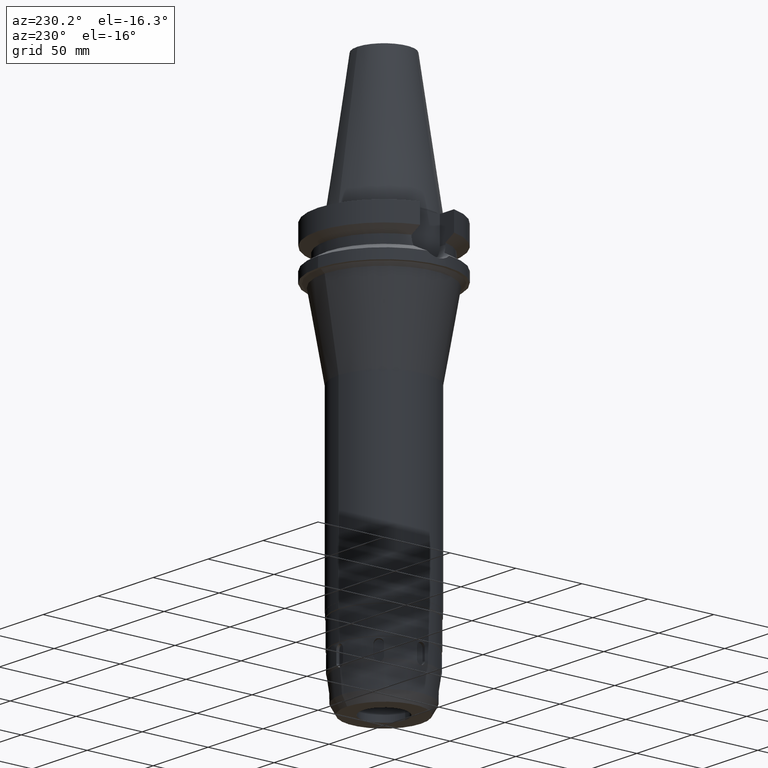
[diagram: clean part render]
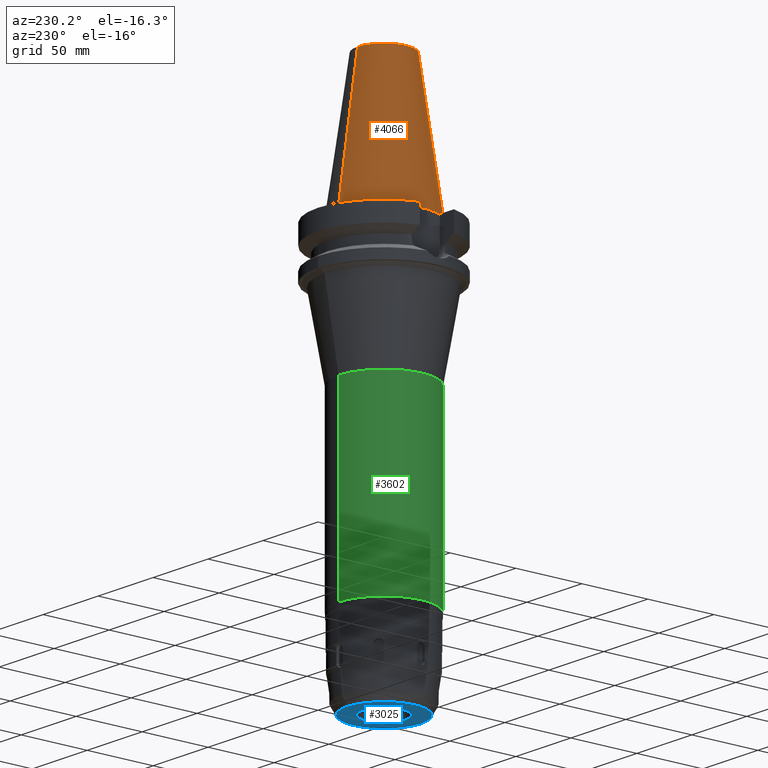
[diagram: same view with three faces highlighted in distinct colors, each labeled with its STEP entity id]
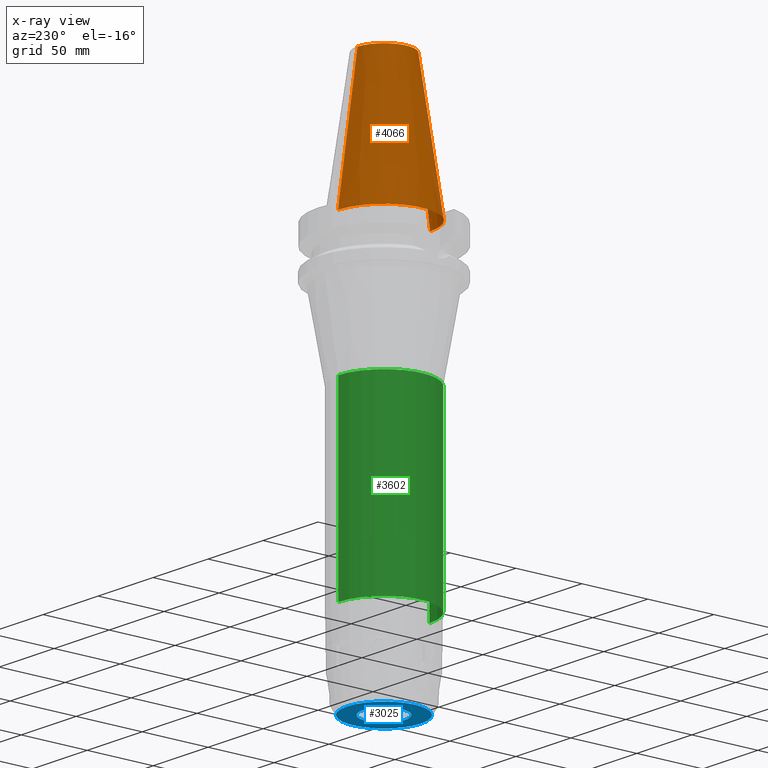
[diagram: x-ray of the same camera — body ghosted, the three highlighted faces saturated]
A machine part, auxiliary view with three faces highlighted in distinct colors.
The next image is the same camera in x-ray (body ghosted, the three faces saturated) — at least one of them is partly hidden behind the body in this view.
Their STEP definitions:

[orange] entity #4066 — the highlighted conical surface has half-angle 8.297 deg.
#1955=DIRECTION('',(0.E0,-1.443043893539E-1,-9.895333461856E-1));
#1956=VECTOR('',#1955,1.028767755957E2);
#1957=CARTESIAN_POINT('',(0.E0,-2.007942971896E1,1.018E2));
#1958=LINE('',#1957,#1956);
#1962=CARTESIAN_POINT('',(0.E0,1.847992019913E-14,8.526512829121E-13));
#1963=DIRECTION('',(0.E0,0.E0,-1.E0));
#1964=DIRECTION('',(0.E0,-1.E0,0.E0));
#1965=AXIS2_PLACEMENT_3D('',#1962,#1963,#1964);
#1970=DIRECTION('',(0.E0,1.443043893539E-1,-9.895333461856E-1));
#1971=VECTOR('',#1970,1.028767755957E2);
#1972=CARTESIAN_POINT('',(0.E0,2.007942971896E1,1.018E2));
#1973=LINE('',#1972,#1971);
#1985=CARTESIAN_POINT('',(0.E0,1.847992019913E-14,1.018E2));
#1986=DIRECTION('',(0.E0,0.E0,-1.E0));
#1987=DIRECTION('',(0.E0,-1.E0,0.E0));
#1988=AXIS2_PLACEMENT_3D('',#1985,#1986,#1987);
#2722=CARTESIAN_POINT('',(0.E0,3.4925E1,7.531752999057E-13));
#2723=VERTEX_POINT('',#2722);
#2724=CARTESIAN_POINT('',(0.E0,-3.4925E1,7.531752999057E-13));
#2725=VERTEX_POINT('',#2724);
#2726=CARTESIAN_POINT('',(0.E0,2.007942971896E1,1.018E2));
#2727=VERTEX_POINT('',#2726);
#2728=CARTESIAN_POINT('',(0.E0,-2.007942971896E1,1.018E2));
#2729=VERTEX_POINT('',#2728);
#4052=CARTESIAN_POINT('',(0.E0,1.847992019913E-14,5.09E1));
#4053=DIRECTION('',(0.E0,0.E0,-1.E0));
#4054=DIRECTION('',(0.E0,-1.E0,0.E0));
#4055=AXIS2_PLACEMENT_3D('',#4052,#4053,#4054);
#4056=CONICAL_SURFACE('',#4055,2.750221485948E1,8.297E0);
#4058=ORIENTED_EDGE('',*,*,#4057,.F.);
#4060=ORIENTED_EDGE('',*,*,#4059,.F.);
#4062=ORIENTED_EDGE('',*,*,#4061,.T.);
#4063=ORIENTED_EDGE('',*,*,#4045,.T.);
#4064=EDGE_LOOP('',(#4058,#4060,#4062,#4063));
#4065=FACE_OUTER_BOUND('',#4064,.F.);
#1966=CIRCLE('',#1965,3.4925E1);
#1989=CIRCLE('',#1988,2.007942971896E1);
#4045=EDGE_CURVE('',#2725,#2723,#1966,.T.);
#4057=EDGE_CURVE('',#2727,#2723,#1973,.T.);
#4059=EDGE_CURVE('',#2729,#2727,#1989,.T.);
#4061=EDGE_CURVE('',#2729,#2725,#1958,.T.);
#4066=ADVANCED_FACE('',(#4065),#4056,.T.);

[blue] entity #3025 — the highlighted planar face has unit normal (0, 0, -1).
#216=CARTESIAN_POINT('',(0.E0,-2.408641447797E-14,-3.E2));
#217=DIRECTION('',(0.E0,0.E0,1.E0));
#218=DIRECTION('',(0.E0,-1.E0,0.E0));
#219=AXIS2_PLACEMENT_3D('',#216,#217,#218);
#224=CARTESIAN_POINT('',(0.E0,-2.408641447797E-14,-3.E2));
#225=DIRECTION('',(0.E0,0.E0,1.E0));
#226=DIRECTION('',(0.E0,1.E0,0.E0));
#227=AXIS2_PLACEMENT_3D('',#224,#225,#226);
#232=CARTESIAN_POINT('',(0.E0,2.717368782628E-14,-3.E2));
#233=DIRECTION('',(0.E0,0.E0,-1.E0));
#234=DIRECTION('',(0.E0,-1.E0,0.E0));
#235=AXIS2_PLACEMENT_3D('',#232,#233,#234);
#240=CARTESIAN_POINT('',(0.E0,2.717368782628E-14,-3.E2));
#241=DIRECTION('',(0.E0,0.E0,-1.E0));
#242=DIRECTION('',(0.E0,1.E0,0.E0));
#243=AXIS2_PLACEMENT_3D('',#240,#241,#242);
#2483=CARTESIAN_POINT('',(0.E0,1.6E1,-3.E2));
#2484=VERTEX_POINT('',#2483);
#2485=CARTESIAN_POINT('',(0.E0,-1.6E1,-3.E2));
#2486=VERTEX_POINT('',#2485);
#2487=CARTESIAN_POINT('',(0.E0,-2.8E1,-3.E2));
#2488=CARTESIAN_POINT('',(0.E0,2.8E1,-3.E2));
#2489=VERTEX_POINT('',#2487);
#2490=VERTEX_POINT('',#2488);
#3010=CARTESIAN_POINT('',(0.E0,-2.449293598295E-14,-3.E2));
#3011=DIRECTION('',(0.E0,0.E0,-1.E0));
#3012=DIRECTION('',(0.E0,-1.E0,0.E0));
#3013=AXIS2_PLACEMENT_3D('',#3010,#3011,#3012);
#3014=PLANE('',#3013);
#3016=ORIENTED_EDGE('',*,*,#3015,.T.);
#3018=ORIENTED_EDGE('',*,*,#3017,.T.);
#3019=EDGE_LOOP('',(#3016,#3018));
#3020=FACE_OUTER_BOUND('',#3019,.F.);
#3021=ORIENTED_EDGE('',*,*,#3003,.T.);
#3022=ORIENTED_EDGE('',*,*,#2992,.T.);
#3023=EDGE_LOOP('',(#3021,#3022));
#3024=FACE_BOUND('',#3023,.F.);
#220=CIRCLE('',#219,2.8E1);
#228=CIRCLE('',#227,2.8E1);
#236=CIRCLE('',#235,1.6E1);
#244=CIRCLE('',#243,1.6E1);
#2992=EDGE_CURVE('',#2484,#2486,#244,.T.);
#3003=EDGE_CURVE('',#2486,#2484,#236,.T.);
#3015=EDGE_CURVE('',#2489,#2490,#220,.T.);
#3017=EDGE_CURVE('',#2490,#2489,#228,.T.);
#3025=ADVANCED_FACE('',(#3020,#3024),#3014,.T.);

[green] entity #3602 — the highlighted cylindrical surface (partial cylindrical patch) has radius 34.5 mm, axis along (0, 0, -1).
#1282=CARTESIAN_POINT('',(0.E0,2.717368782628E-14,-2.378E2));
#1283=DIRECTION('',(0.E0,0.E0,1.E0));
#1284=DIRECTION('',(0.E0,1.E0,0.E0));
#1285=AXIS2_PLACEMENT_3D('',#1282,#1283,#1284);
#1306=DIRECTION('',(0.E0,0.E0,-1.E0));
#1307=VECTOR('',#1306,1.37625E2);
#1308=CARTESIAN_POINT('',(0.E0,3.45E1,-1.00175E2));
#1309=LINE('',#1308,#1307);
#1313=DIRECTION('',(0.E0,0.E0,-1.E0));
#1314=VECTOR('',#1313,1.37625E2);
#1315=CARTESIAN_POINT('',(0.E0,-3.45E1,-1.00175E2));
#1316=LINE('',#1315,#1314);
#1327=CARTESIAN_POINT('',(0.E0,0.E0,-1.00175E2));
#1328=DIRECTION('',(0.E0,0.E0,-1.E0));
#1329=DIRECTION('',(0.E0,-1.E0,0.E0));
#1330=AXIS2_PLACEMENT_3D('',#1327,#1328,#1329);
#2629=CARTESIAN_POINT('',(0.E0,-3.45E1,-2.378E2));
#2630=CARTESIAN_POINT('',(0.E0,3.45E1,-2.378E2));
#2631=VERTEX_POINT('',#2629);
#2632=VERTEX_POINT('',#2630);
#2633=CARTESIAN_POINT('',(0.E0,3.45E1,-1.00175E2));
#2634=VERTEX_POINT('',#2633);
#2635=CARTESIAN_POINT('',(0.E0,-3.45E1,-1.00175E2));
#2636=VERTEX_POINT('',#2635);
#3590=CARTESIAN_POINT('',(0.E0,2.717368782628E-14,1.2189E2));
#3591=DIRECTION('',(0.E0,0.E0,-1.E0));
#3592=DIRECTION('',(0.E0,-1.E0,0.E0));
#3593=AXIS2_PLACEMENT_3D('',#3590,#3591,#3592);
#3594=CYLINDRICAL_SURFACE('',#3593,3.45E1);
#3595=ORIENTED_EDGE('',*,*,#3580,.F.);
#3597=ORIENTED_EDGE('',*,*,#3596,.F.);
#3598=ORIENTED_EDGE('',*,*,#3583,.T.);
#3599=ORIENTED_EDGE('',*,*,#3566,.F.);
#3600=EDGE_LOOP('',(#3595,#3597,#3598,#3599));
#3601=FACE_OUTER_BOUND('',#3600,.F.);
#1286=CIRCLE('',#1285,3.45E1);
#1331=CIRCLE('',#1330,3.45E1);
#3566=EDGE_CURVE('',#2632,#2631,#1286,.T.);
#3580=EDGE_CURVE('',#2634,#2632,#1309,.T.);
#3583=EDGE_CURVE('',#2636,#2631,#1316,.T.);
#3596=EDGE_CURVE('',#2636,#2634,#1331,.T.);
#3602=ADVANCED_FACE('',(#3601),#3594,.T.);